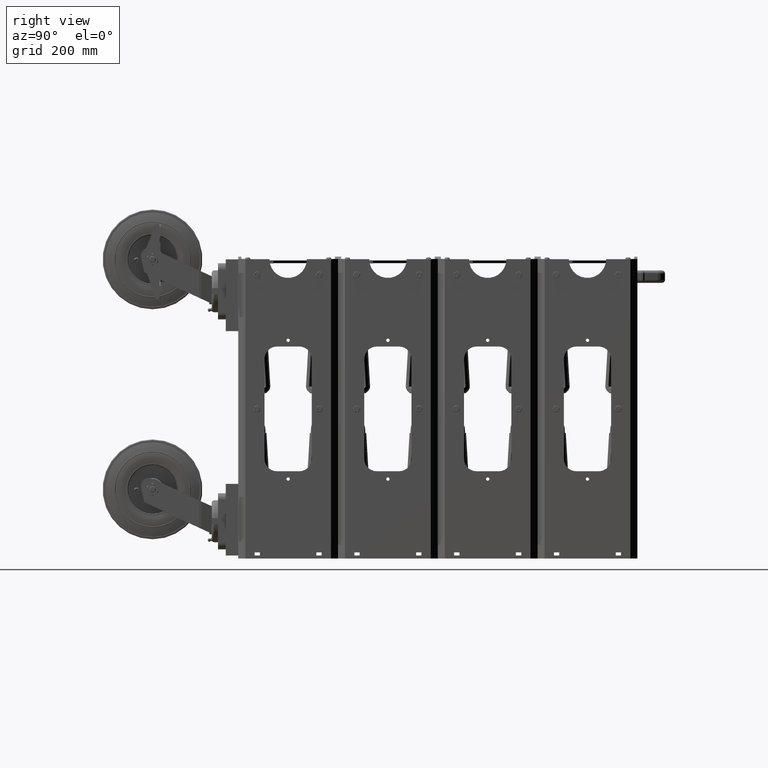
[diagram: clean part render]
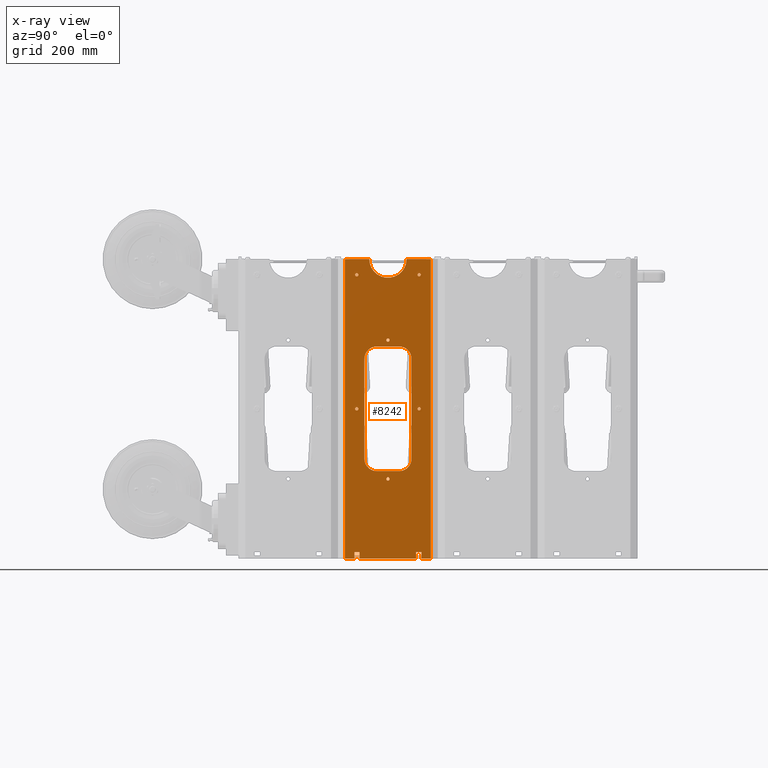
[diagram: x-ray — body ghosted, one internal face saturated and labeled with its STEP entity id]
A machine part, right view, then the same camera in x-ray: the body is ghosted and one INTERNAL B-rep face — a face not visible from any outside direction — is saturated and labeled: STEP entity #8242.
In plain terms, the highlighted planar face has unit normal (-1, 0, 0).
Its self-contained STEP definition (entity closure, byte-faithful):
#16 = CARTESIAN_POINT ( 'NONE',  ( -2.687500000000000400, 4.000000000000000000, 11.60500000000000000 ) ) ;
#17 = CARTESIAN_POINT ( 'NONE',  ( -2.263500000000000500, 4.000000000000000000, 11.60500000000000000 ) ) ;
#20 = CARTESIAN_POINT ( 'NONE',  ( 2.263500000000000500, 4.000000000000000000, 11.60500000000000000 ) ) ;
#21 = CARTESIAN_POINT ( 'NONE',  ( 2.687500000000000400, 4.000000000000000000, 11.60500000000000000 ) ) ;
#26 = CARTESIAN_POINT ( 'NONE',  ( -1.895000000000002700, 4.000000000000000000, -3.894999999999997800 ) ) ;
#27 = CARTESIAN_POINT ( 'NONE',  ( -1.895000000000000900, 4.000000000000000900, 4.105000000000000400 ) ) ;
#29 = CARTESIAN_POINT ( 'NONE',  ( -0.8950000000000020200, 4.000000000000000900, -4.894999999999997800 ) ) ;
#31 = CARTESIAN_POINT ( 'NONE',  ( 0.8949999999999930200, 4.000000000000000900, -4.894999999999997800 ) ) ;
#33 = CARTESIAN_POINT ( 'NONE',  ( 1.895000000000000500, 4.000000000000000900, -3.894999999999990700 ) ) ;
#35 = CARTESIAN_POINT ( 'NONE',  ( 1.895000000000000200, 4.000000000000000900, 4.105000000000000400 ) ) ;
#37 = CARTESIAN_POINT ( 'NONE',  ( 0.8950000000000000200, 4.000000000000000900, 5.105000000000001300 ) ) ;
#39 = CARTESIAN_POINT ( 'NONE',  ( -0.8950000000000010200, 4.000000000000000900, 5.105000000000000400 ) ) ;
#70 = CARTESIAN_POINT ( 'NONE',  ( -2.687500000000000400, 4.000000000000000000, 12.10500000000000000 ) ) ;
#73 = CARTESIAN_POINT ( 'NONE',  ( -2.263500000000000500, 4.000000000000000000, 12.10500000000000000 ) ) ;
#76 = CARTESIAN_POINT ( 'NONE',  ( 2.263500000000000500, 4.000000000000000000, 12.10500000000000000 ) ) ;
#79 = CARTESIAN_POINT ( 'NONE',  ( 2.687500000000000400, 4.000000000000000000, 12.10500000000000000 ) ) ;
#85 = CARTESIAN_POINT ( 'NONE',  ( 3.437500000000008000, 4.000000000000000000, 12.10500000000000000 ) ) ;
#86 = CARTESIAN_POINT ( 'NONE',  ( 3.437500000000004000, 4.000000000000000900, -11.89500000000000000 ) ) ;
#87 = CARTESIAN_POINT ( 'NONE',  ( 1.499999999999996700, 4.000000000000000900, -11.89500000000000000 ) ) ;
#88 = CARTESIAN_POINT ( 'NONE',  ( -1.500000000000004200, 4.000000000000000900, -11.89500000000000000 ) ) ;
#89 = CARTESIAN_POINT ( 'NONE',  ( -3.437499999999995600, 4.000000000000000900, -11.89500000000000000 ) ) ;
#90 = CARTESIAN_POINT ( 'NONE',  ( -3.437499999999994700, 4.000000000000000900, 12.10500000000000000 ) ) ;
#366 = AXIS2_PLACEMENT_3D ( 'NONE', #4080, #4082, #4083 ) ;
#368 = AXIS2_PLACEMENT_3D ( 'NONE', #4090, #4092, #4093 ) ;
#370 = AXIS2_PLACEMENT_3D ( 'NONE', #4100, #4102, #4103 ) ;
#372 = AXIS2_PLACEMENT_3D ( 'NONE', #4110, #4112, #4113 ) ;
#374 = AXIS2_PLACEMENT_3D ( 'NONE', #4120, #4122, #4123 ) ;
#376 = AXIS2_PLACEMENT_3D ( 'NONE', #4130, #4132, #4133 ) ;
#390 = AXIS2_PLACEMENT_3D ( 'NONE', #4228, #4232, #4233 ) ;
#391 = AXIS2_PLACEMENT_3D ( 'NONE', #4221, #4223, #4224 ) ;
#394 = AXIS2_PLACEMENT_3D ( 'NONE', #4251, #4253, #4254 ) ;
#396 = AXIS2_PLACEMENT_3D ( 'NONE', #4265, #4267, #4268 ) ;
#397 = AXIS2_PLACEMENT_3D ( 'NONE', #4278, #4287, #4288 ) ;
#398 = AXIS2_PLACEMENT_3D ( 'NONE', #4281, #4284, #4285 ) ;
#401 = AXIS2_PLACEMENT_3D ( 'NONE', #4286, #4293, #4294 ) ;
#402 = AXIS2_PLACEMENT_3D ( 'NONE', #4289, #4296, #4297 ) ;
#404 = AXIS2_PLACEMENT_3D ( 'NONE', #4295, #4302, #4303 ) ;
#406 = AXIS2_PLACEMENT_3D ( 'NONE', #4301, #4308, #4309 ) ;
#409 = AXIS2_PLACEMENT_3D ( 'NONE', #4442, #4448, #4449 ) ;
#2257 = CIRCLE ( 'NONE', #366, 0.1329999999999999200 ) ;
#2263 = CIRCLE ( 'NONE', #368, 0.1329999999999999200 ) ;
#2269 = CIRCLE ( 'NONE', #370, 0.1329999999999999200 ) ;
#2275 = CIRCLE ( 'NONE', #372, 0.1329999999999999200 ) ;
#2281 = CIRCLE ( 'NONE', #374, 0.1329999999999997300 ) ;
#2287 = CIRCLE ( 'NONE', #376, 0.1329999999999997000 ) ;
#2328 = VECTOR ( 'NONE', #4210, 39.37007874015748100 ) ;
#2330 = LINE ( 'NONE', #4209, #2328 ) ;
#2339 = LINE ( 'NONE', #4216, #2344 ) ;
#2344 = VECTOR ( 'NONE', #4220, 39.37007874015748100 ) ;
#2349 = LINE ( 'NONE', #4219, #2351 ) ;
#2350 = CIRCLE ( 'NONE', #391, 1.000000000000000200 ) ;
#2351 = VECTOR ( 'NONE', #4229, 39.37007874015748100 ) ;
#2356 = CIRCLE ( 'NONE', #390, 1.000000000000000200 ) ;
#2358 = VECTOR ( 'NONE', #4248, 39.37007874015748100 ) ;
#2360 = LINE ( 'NONE', #4247, #2358 ) ;
#2361 = LINE ( 'NONE', #4239, #2362 ) ;
#2362 = VECTOR ( 'NONE', #4240, 39.37007874015748100 ) ;
#2372 = VECTOR ( 'NONE', #4262, 39.37007874015748100 ) ;
#2373 = LINE ( 'NONE', #4261, #2372 ) ;
#2374 = CIRCLE ( 'NONE', #394, 1.000000000000000900 ) ;
#2382 = CIRCLE ( 'NONE', #396, 1.000000000000000200 ) ;
#2389 = CIRCLE ( 'NONE', #398, 0.1329999999999997000 ) ;
#2390 = CIRCLE ( 'NONE', #397, 0.1329999999999997300 ) ;
#2392 = CIRCLE ( 'NONE', #401, 0.1329999999999999200 ) ;
#2393 = CIRCLE ( 'NONE', #402, 0.1329999999999999200 ) ;
#2396 = CIRCLE ( 'NONE', #404, 0.1329999999999999200 ) ;
#2400 = CIRCLE ( 'NONE', #406, 0.1329999999999999200 ) ;
#4080 = CARTESIAN_POINT ( 'NONE',  ( 0.0000000000000000000, 4.000000000000000900, 5.730000000000000400 ) ) ;
#4082 = DIRECTION ( 'NONE',  ( 0.0000000000000000000, -1.000000000000000000, 0.0000000000000000000 ) ) ;
#4083 = DIRECTION ( 'NONE',  ( 0.0000000000000000000, 0.0000000000000000000, -1.000000000000000000 ) ) ;
#4090 = CARTESIAN_POINT ( 'NONE',  ( 0.0000000000000000000, 4.000000000000000900, -5.394999999999999600 ) ) ;
#4092 = DIRECTION ( 'NONE',  ( 0.0000000000000000000, -1.000000000000000000, 0.0000000000000000000 ) ) ;
#4093 = DIRECTION ( 'NONE',  ( 0.0000000000000000000, 0.0000000000000000000, -1.000000000000000000 ) ) ;
#4100 = CARTESIAN_POINT ( 'NONE',  ( 2.500000000000001300, 4.000000000000000900, -10.64500000000000000 ) ) ;
#4102 = DIRECTION ( 'NONE',  ( 0.0000000000000000000, -1.000000000000000000, 0.0000000000000000000 ) ) ;
#4103 = DIRECTION ( 'NONE',  ( 0.0000000000000000000, 0.0000000000000000000, -1.000000000000000000 ) ) ;
#4110 = CARTESIAN_POINT ( 'NONE',  ( -2.500000000000000000, 4.000000000000000900, -10.64500000000000000 ) ) ;
#4112 = DIRECTION ( 'NONE',  ( 0.0000000000000000000, -1.000000000000000000, 0.0000000000000000000 ) ) ;
#4113 = DIRECTION ( 'NONE',  ( 0.0000000000000000000, 0.0000000000000000000, -1.000000000000000000 ) ) ;
#4120 = CARTESIAN_POINT ( 'NONE',  ( 2.500000000000000000, 4.000000000000000900, 0.1050000000000012000 ) ) ;
#4122 = DIRECTION ( 'NONE',  ( 0.0000000000000000000, -1.000000000000000000, 0.0000000000000000000 ) ) ;
#4123 = DIRECTION ( 'NONE',  ( 0.0000000000000000000, 0.0000000000000000000, -1.000000000000000000 ) ) ;
#4130 = CARTESIAN_POINT ( 'NONE',  ( -2.500000000000000000, 4.000000000000000900, 0.1050000000000011900 ) ) ;
#4132 = DIRECTION ( 'NONE',  ( 0.0000000000000000000, -1.000000000000000000, 0.0000000000000000000 ) ) ;
#4133 = DIRECTION ( 'NONE',  ( 0.0000000000000000000, 0.0000000000000000000, -1.000000000000000000 ) ) ;
#4209 = CARTESIAN_POINT ( 'NONE',  ( -1.895000000000000900, 4.000000000000000900, 4.105000000000000400 ) ) ;
#4210 = DIRECTION ( 'NONE',  ( -2.048885995248197900E-016, 0.0000000000000000000, -1.000000000000000000 ) ) ;
#4216 = CARTESIAN_POINT ( 'NONE',  ( -2.687500000000000400, 4.000000000000000000, 11.60500000000000000 ) ) ;
#4219 = CARTESIAN_POINT ( 'NONE',  ( 2.263500000000000500, 4.000000000000000000, 11.60500000000000000 ) ) ;
#4220 = DIRECTION ( 'NONE',  ( 1.000000000000000000, 0.0000000000000000000, 0.0000000000000000000 ) ) ;
#4221 = CARTESIAN_POINT ( 'NONE',  ( -0.8950000000000022400, 4.000000000000000900, -3.894999999999997800 ) ) ;
#4223 = DIRECTION ( 'NONE',  ( -0.0000000000000000000, -1.000000000000000000, -0.0000000000000000000 ) ) ;
#4224 = DIRECTION ( 'NONE',  ( 0.0000000000000000000, 0.0000000000000000000, 1.000000000000000000 ) ) ;
#4228 = CARTESIAN_POINT ( 'NONE',  ( 0.8950000000000001300, 4.000000000000000900, -3.894999999999997800 ) ) ;
#4229 = DIRECTION ( 'NONE',  ( 1.000000000000000000, 0.0000000000000000000, 0.0000000000000000000 ) ) ;
#4232 = DIRECTION ( 'NONE',  ( 0.0000000000000000000, -1.000000000000000000, 0.0000000000000000000 ) ) ;
#4233 = DIRECTION ( 'NONE',  ( 0.0000000000000000000, 0.0000000000000000000, -1.000000000000000000 ) ) ;
#4239 = CARTESIAN_POINT ( 'NONE',  ( -0.8950000000000022400, 4.000000000000000900, -4.894999999999997800 ) ) ;
#4240 = DIRECTION ( 'NONE',  ( 1.000000000000000000, 0.0000000000000000000, 0.0000000000000000000 ) ) ;
#4247 = CARTESIAN_POINT ( 'NONE',  ( 1.895000000000000200, 4.000000000000000900, 4.105000000000000400 ) ) ;
#4248 = DIRECTION ( 'NONE',  ( -0.0000000000000000000, -0.0000000000000000000, 1.000000000000000000 ) ) ;
#4251 = CARTESIAN_POINT ( 'NONE',  ( 0.8949999999999999100, 4.000000000000000900, 4.105000000000000400 ) ) ;
#4253 = DIRECTION ( 'NONE',  ( 0.0000000000000000000, -1.000000000000000000, 0.0000000000000000000 ) ) ;
#4254 = DIRECTION ( 'NONE',  ( 0.0000000000000000000, 0.0000000000000000000, -1.000000000000000000 ) ) ;
#4261 = CARTESIAN_POINT ( 'NONE',  ( -0.8950000000000010200, 4.000000000000000900, 5.105000000000000400 ) ) ;
#4262 = DIRECTION ( 'NONE',  ( -1.000000000000000000, -0.0000000000000000000, -6.104688253998350900E-016 ) ) ;
#4265 = CARTESIAN_POINT ( 'NONE',  ( -0.8950000000000006800, 4.000000000000000900, 4.105000000000000400 ) ) ;
#4267 = DIRECTION ( 'NONE',  ( -0.0000000000000000000, -1.000000000000000000, -0.0000000000000000000 ) ) ;
#4268 = DIRECTION ( 'NONE',  ( 0.0000000000000000000, 0.0000000000000000000, 1.000000000000000000 ) ) ;
#4278 = CARTESIAN_POINT ( 'NONE',  ( 2.500000000000000000, 4.000000000000000900, 0.1050000000000012000 ) ) ;
#4281 = CARTESIAN_POINT ( 'NONE',  ( -2.500000000000000000, 4.000000000000000900, 0.1050000000000011900 ) ) ;
#4284 = DIRECTION ( 'NONE',  ( 0.0000000000000000000, -1.000000000000000000, 0.0000000000000000000 ) ) ;
#4285 = DIRECTION ( 'NONE',  ( 0.0000000000000000000, 0.0000000000000000000, -1.000000000000000000 ) ) ;
#4286 = CARTESIAN_POINT ( 'NONE',  ( -2.500000000000000000, 4.000000000000000900, -10.64500000000000000 ) ) ;
#4287 = DIRECTION ( 'NONE',  ( 0.0000000000000000000, -1.000000000000000000, 0.0000000000000000000 ) ) ;
#4288 = DIRECTION ( 'NONE',  ( 0.0000000000000000000, 0.0000000000000000000, -1.000000000000000000 ) ) ;
#4289 = CARTESIAN_POINT ( 'NONE',  ( 2.500000000000001300, 4.000000000000000900, -10.64500000000000000 ) ) ;
#4293 = DIRECTION ( 'NONE',  ( 0.0000000000000000000, -1.000000000000000000, 0.0000000000000000000 ) ) ;
#4294 = DIRECTION ( 'NONE',  ( 0.0000000000000000000, 0.0000000000000000000, -1.000000000000000000 ) ) ;
#4295 = CARTESIAN_POINT ( 'NONE',  ( 0.0000000000000000000, 4.000000000000000900, -5.394999999999999600 ) ) ;
#4296 = DIRECTION ( 'NONE',  ( 0.0000000000000000000, -1.000000000000000000, 0.0000000000000000000 ) ) ;
#4297 = DIRECTION ( 'NONE',  ( 0.0000000000000000000, 0.0000000000000000000, -1.000000000000000000 ) ) ;
#4301 = CARTESIAN_POINT ( 'NONE',  ( 0.0000000000000000000, 4.000000000000000900, 5.730000000000000400 ) ) ;
#4302 = DIRECTION ( 'NONE',  ( 0.0000000000000000000, -1.000000000000000000, 0.0000000000000000000 ) ) ;
#4303 = DIRECTION ( 'NONE',  ( 0.0000000000000000000, 0.0000000000000000000, -1.000000000000000000 ) ) ;
#4308 = DIRECTION ( 'NONE',  ( 0.0000000000000000000, -1.000000000000000000, 0.0000000000000000000 ) ) ;
#4309 = DIRECTION ( 'NONE',  ( 0.0000000000000000000, 0.0000000000000000000, -1.000000000000000000 ) ) ;
#4411 = CARTESIAN_POINT ( 'NONE',  ( -2.687500000000000400, 4.000000000000000000, 12.10500000000000000 ) ) ;
#4414 = DIRECTION ( 'NONE',  ( 0.0000000000000000000, 0.0000000000000000000, -1.000000000000000000 ) ) ;
#4421 = CARTESIAN_POINT ( 'NONE',  ( -2.263500000000000500, 4.000000000000000000, 12.10500000000000000 ) ) ;
#4422 = DIRECTION ( 'NONE',  ( 5.463695987328531400E-016, 0.0000000000000000000, 1.000000000000000000 ) ) ;
#4429 = CARTESIAN_POINT ( 'NONE',  ( 2.263500000000000500, 4.000000000000000000, 12.10500000000000000 ) ) ;
#4430 = DIRECTION ( 'NONE',  ( 5.463695987328531400E-016, 0.0000000000000000000, -1.000000000000000000 ) ) ;
#4437 = CARTESIAN_POINT ( 'NONE',  ( 2.687500000000000400, 4.000000000000000000, 12.10500000000000000 ) ) ;
#4438 = DIRECTION ( 'NONE',  ( 0.0000000000000000000, 0.0000000000000000000, 1.000000000000000000 ) ) ;
#4439 = CARTESIAN_POINT ( 'NONE',  ( -3.437499999999995600, 4.000000000000000000, 12.10500000000000000 ) ) ;
#4442 = CARTESIAN_POINT ( 'NONE',  ( -3.824587191129968100E-015, 4.000000000000000900, -11.89500000000000000 ) ) ;
#4448 = DIRECTION ( 'NONE',  ( 0.0000000000000000000, -1.000000000000000000, 0.0000000000000000000 ) ) ;
#4449 = DIRECTION ( 'NONE',  ( 0.0000000000000000000, 0.0000000000000000000, -1.000000000000000000 ) ) ;
#4450 = CARTESIAN_POINT ( 'NONE',  ( -4.000000000000000000, 4.000000000000000900, -11.89500000000000000 ) ) ;
#4451 = DIRECTION ( 'NONE',  ( 1.000000000000000000, -0.0000000000000000000, -0.0000000000000000000 ) ) ;
#4452 = CARTESIAN_POINT ( 'NONE',  ( 3.437500000000005800, 4.000000000000000000, 12.10500000000000000 ) ) ;
#4453 = DIRECTION ( 'NONE',  ( 0.0000000000000000000, 0.0000000000000000000, -1.000000000000000000 ) ) ;
#4454 = CARTESIAN_POINT ( 'NONE',  ( -4.000000000000000900, 4.000000000000000000, 12.10500000000000000 ) ) ;
#4455 = DIRECTION ( 'NONE',  ( -1.000000000000000000, -0.0000000000000000000, -0.0000000000000000000 ) ) ;
#4457 = CARTESIAN_POINT ( 'NONE',  ( -4.000000000000000000, 4.000000000000000900, -11.89500000000000000 ) ) ;
#4458 = DIRECTION ( 'NONE',  ( 1.000000000000000000, -0.0000000000000000000, -0.0000000000000000000 ) ) ;
#4459 = DIRECTION ( 'NONE',  ( 0.0000000000000000000, 0.0000000000000000000, 1.000000000000000000 ) ) ;
#4460 = CARTESIAN_POINT ( 'NONE',  ( -4.000000000000000900, 4.000000000000000000, 12.10500000000000000 ) ) ;
#4461 = DIRECTION ( 'NONE',  ( -1.000000000000000000, -0.0000000000000000000, -0.0000000000000000000 ) ) ;
#4464 = CARTESIAN_POINT ( 'NONE',  ( -4.000000000000000900, 4.000000000000000000, 12.10500000000000000 ) ) ;
#4465 = DIRECTION ( 'NONE',  ( -1.000000000000000000, -0.0000000000000000000, -0.0000000000000000000 ) ) ;
#4921 = LINE ( 'NONE', #4411, #4938 ) ;
#4938 = VECTOR ( 'NONE', #4414, 39.37007874015748100 ) ;
#4939 = VECTOR ( 'NONE', #4451, 39.37007874015748100 ) ;
#4946 = LINE ( 'NONE', #4421, #4947 ) ;
#4947 = VECTOR ( 'NONE', #4422, 39.37007874015748100 ) ;
#4953 = LINE ( 'NONE', #4450, #4939 ) ;
#4954 = LINE ( 'NONE', #4429, #4955 ) ;
#4955 = VECTOR ( 'NONE', #4430, 39.37007874015748100 ) ;
#4962 = LINE ( 'NONE', #4437, #4963 ) ;
#4963 = VECTOR ( 'NONE', #4438, 39.37007874015748100 ) ;
#4971 = LINE ( 'NONE', #4439, #4979 ) ;
#4972 = CIRCLE ( 'NONE', #409, 1.500000000000000900 ) ;
#4973 = LINE ( 'NONE', #4452, #4974 ) ;
#4974 = VECTOR ( 'NONE', #4453, 39.37007874015748100 ) ;
#4975 = LINE ( 'NONE', #4454, #4976 ) ;
#4976 = VECTOR ( 'NONE', #4455, 39.37007874015748100 ) ;
#4977 = LINE ( 'NONE', #4457, #4978 ) ;
#4978 = VECTOR ( 'NONE', #4458, 39.37007874015748100 ) ;
#4979 = VECTOR ( 'NONE', #4459, 39.37007874015748100 ) ;
#4981 = LINE ( 'NONE', #4460, #4982 ) ;
#4982 = VECTOR ( 'NONE', #4461, 39.37007874015748100 ) ;
#4985 = LINE ( 'NONE', #4464, #4986 ) ;
#4986 = VECTOR ( 'NONE', #4465, 39.37007874015748100 ) ;
#8242 = ADVANCED_FACE ( 'NONE', ( #25886, #25888, #25890, #25892, #25884, #25887, #25889, #25891 ), #27751, .F. ) ;
#16269 = VERTEX_POINT ( 'NONE', #44473 ) ;
#16270 = VERTEX_POINT ( 'NONE', #44474 ) ;
#16273 = VERTEX_POINT ( 'NONE', #44477 ) ;
#16274 = VERTEX_POINT ( 'NONE', #44478 ) ;
#16277 = VERTEX_POINT ( 'NONE', #44481 ) ;
#16278 = VERTEX_POINT ( 'NONE', #44482 ) ;
#16281 = VERTEX_POINT ( 'NONE', #44485 ) ;
#16282 = VERTEX_POINT ( 'NONE', #44486 ) ;
#16285 = VERTEX_POINT ( 'NONE', #44489 ) ;
#16286 = VERTEX_POINT ( 'NONE', #44490 ) ;
#16289 = VERTEX_POINT ( 'NONE', #44493 ) ;
#16290 = VERTEX_POINT ( 'NONE', #44494 ) ;
#16317 = VERTEX_POINT ( 'NONE', #16 ) ;
#16318 = VERTEX_POINT ( 'NONE', #17 ) ;
#16321 = VERTEX_POINT ( 'NONE', #20 ) ;
#16322 = VERTEX_POINT ( 'NONE', #21 ) ;
#16327 = VERTEX_POINT ( 'NONE', #26 ) ;
#16328 = VERTEX_POINT ( 'NONE', #27 ) ;
#16330 = VERTEX_POINT ( 'NONE', #29 ) ;
#16332 = VERTEX_POINT ( 'NONE', #31 ) ;
#16334 = VERTEX_POINT ( 'NONE', #33 ) ;
#16336 = VERTEX_POINT ( 'NONE', #35 ) ;
#16338 = VERTEX_POINT ( 'NONE', #37 ) ;
#16340 = VERTEX_POINT ( 'NONE', #39 ) ;
#16371 = VERTEX_POINT ( 'NONE', #70 ) ;
#16374 = VERTEX_POINT ( 'NONE', #73 ) ;
#16377 = VERTEX_POINT ( 'NONE', #76 ) ;
#16380 = VERTEX_POINT ( 'NONE', #79 ) ;
#16386 = VERTEX_POINT ( 'NONE', #85 ) ;
#16387 = VERTEX_POINT ( 'NONE', #86 ) ;
#16388 = VERTEX_POINT ( 'NONE', #87 ) ;
#16389 = VERTEX_POINT ( 'NONE', #88 ) ;
#16390 = VERTEX_POINT ( 'NONE', #89 ) ;
#16391 = VERTEX_POINT ( 'NONE', #90 ) ;
#17229 = EDGE_CURVE ( 'NONE', #16269, #16270, #2257, .T. ) ;
#17233 = EDGE_CURVE ( 'NONE', #16273, #16274, #2263, .T. ) ;
#17237 = EDGE_CURVE ( 'NONE', #16277, #16278, #2269, .T. ) ;
#17241 = EDGE_CURVE ( 'NONE', #16281, #16282, #2275, .T. ) ;
#17245 = EDGE_CURVE ( 'NONE', #16285, #16286, #2281, .T. ) ;
#17249 = EDGE_CURVE ( 'NONE', #16289, #16290, #2287, .T. ) ;
#17281 = EDGE_CURVE ( 'NONE', #16328, #16327, #2330, .T. ) ;
#17285 = EDGE_CURVE ( 'NONE', #16317, #16318, #2339, .T. ) ;
#17287 = EDGE_CURVE ( 'NONE', #16327, #16330, #2350, .T. ) ;
#17289 = EDGE_CURVE ( 'NONE', #16321, #16322, #2349, .T. ) ;
#17291 = EDGE_CURVE ( 'NONE', #16332, #16334, #2356, .T. ) ;
#17295 = EDGE_CURVE ( 'NONE', #16330, #16332, #2361, .T. ) ;
#17298 = EDGE_CURVE ( 'NONE', #16334, #16336, #2360, .T. ) ;
#17301 = EDGE_CURVE ( 'NONE', #16336, #16338, #2374, .T. ) ;
#17304 = EDGE_CURVE ( 'NONE', #16338, #16340, #2373, .T. ) ;
#17307 = EDGE_CURVE ( 'NONE', #16340, #16328, #2382, .T. ) ;
#17313 = EDGE_CURVE ( 'NONE', #16290, #16289, #2389, .T. ) ;
#17314 = EDGE_CURVE ( 'NONE', #16286, #16285, #2390, .T. ) ;
#17316 = EDGE_CURVE ( 'NONE', #16282, #16281, #2392, .T. ) ;
#17317 = EDGE_CURVE ( 'NONE', #16278, #16277, #2393, .T. ) ;
#17319 = EDGE_CURVE ( 'NONE', #16274, #16273, #2396, .T. ) ;
#17321 = EDGE_CURVE ( 'NONE', #16270, #16269, #2400, .T. ) ;
#17680 = ORIENTED_EDGE ( 'NONE', *, *, #17321, .T. ) ;
#17681 = ORIENTED_EDGE ( 'NONE', *, *, #17229, .T. ) ;
#17682 = ORIENTED_EDGE ( 'NONE', *, *, #17319, .T. ) ;
#17683 = ORIENTED_EDGE ( 'NONE', *, *, #17233, .T. ) ;
#17684 = ORIENTED_EDGE ( 'NONE', *, *, #17317, .T. ) ;
#17685 = ORIENTED_EDGE ( 'NONE', *, *, #17237, .T. ) ;
#17686 = ORIENTED_EDGE ( 'NONE', *, *, #17316, .T. ) ;
#17687 = ORIENTED_EDGE ( 'NONE', *, *, #17241, .T. ) ;
#17688 = ORIENTED_EDGE ( 'NONE', *, *, #17314, .T. ) ;
#17689 = ORIENTED_EDGE ( 'NONE', *, *, #17245, .T. ) ;
#17690 = ORIENTED_EDGE ( 'NONE', *, *, #17313, .T. ) ;
#17691 = ORIENTED_EDGE ( 'NONE', *, *, #17249, .T. ) ;
#17692 = ORIENTED_EDGE ( 'NONE', *, *, #17304, .T. ) ;
#17693 = ORIENTED_EDGE ( 'NONE', *, *, #17307, .T. ) ;
#17694 = ORIENTED_EDGE ( 'NONE', *, *, #17281, .T. ) ;
#17695 = ORIENTED_EDGE ( 'NONE', *, *, #17287, .T. ) ;
#17696 = ORIENTED_EDGE ( 'NONE', *, *, #17295, .T. ) ;
#17697 = ORIENTED_EDGE ( 'NONE', *, *, #17291, .T. ) ;
#17698 = ORIENTED_EDGE ( 'NONE', *, *, #17298, .T. ) ;
#17699 = ORIENTED_EDGE ( 'NONE', *, *, #17301, .T. ) ;
#17700 = ORIENTED_EDGE ( 'NONE', *, *, #18742, .T. ) ;
#17701 = ORIENTED_EDGE ( 'NONE', *, *, #17289, .T. ) ;
#17702 = ORIENTED_EDGE ( 'NONE', *, *, #18746, .T. ) ;
#17703 = ORIENTED_EDGE ( 'NONE', *, *, #18754, .F. ) ;
#17704 = ORIENTED_EDGE ( 'NONE', *, *, #18753, .T. ) ;
#17705 = ORIENTED_EDGE ( 'NONE', *, *, #18752, .F. ) ;
#17706 = ORIENTED_EDGE ( 'NONE', *, *, #18751, .T. ) ;
#17707 = ORIENTED_EDGE ( 'NONE', *, *, #18755, .F. ) ;
#17708 = ORIENTED_EDGE ( 'NONE', *, *, #18756, .T. ) ;
#17709 = ORIENTED_EDGE ( 'NONE', *, *, #18757, .F. ) ;
#17710 = ORIENTED_EDGE ( 'NONE', *, *, #18734, .T. ) ;
#17711 = ORIENTED_EDGE ( 'NONE', *, *, #17285, .T. ) ;
#17712 = ORIENTED_EDGE ( 'NONE', *, *, #18738, .T. ) ;
#17713 = ORIENTED_EDGE ( 'NONE', *, *, #18759, .F. ) ;
#18119 = EDGE_LOOP ( 'NONE', ( #17680, #17681 ) ) ;
#18125 = EDGE_LOOP ( 'NONE', ( #17682, #17683 ) ) ;
#18126 = EDGE_LOOP ( 'NONE', ( #17684, #17685 ) ) ;
#18127 = EDGE_LOOP ( 'NONE', ( #17686, #17687 ) ) ;
#18128 = EDGE_LOOP ( 'NONE', ( #17688, #17689 ) ) ;
#18129 = EDGE_LOOP ( 'NONE', ( #17690, #17691 ) ) ;
#18130 = EDGE_LOOP ( 'NONE', ( #17692, #17693, #17694, #17695, #17696, #17697, #17698, #17699 ) ) ;
#18131 = EDGE_LOOP ( 'NONE', ( #17700, #17701, #17702, #17703, #17704, #17705, #17706, #17707, #17708, #17709, #17710, #17711, #17712, #17713 ) ) ;
#18734 = EDGE_CURVE ( 'NONE', #16371, #16317, #4921, .T. ) ;
#18738 = EDGE_CURVE ( 'NONE', #16318, #16374, #4946, .T. ) ;
#18742 = EDGE_CURVE ( 'NONE', #16377, #16321, #4954, .T. ) ;
#18746 = EDGE_CURVE ( 'NONE', #16322, #16380, #4962, .T. ) ;
#18751 = EDGE_CURVE ( 'NONE', #16388, #16389, #4972, .T. ) ;
#18752 = EDGE_CURVE ( 'NONE', #16388, #16387, #4953, .T. ) ;
#18753 = EDGE_CURVE ( 'NONE', #16386, #16387, #4973, .T. ) ;
#18754 = EDGE_CURVE ( 'NONE', #16386, #16380, #4975, .T. ) ;
#18755 = EDGE_CURVE ( 'NONE', #16390, #16389, #4977, .T. ) ;
#18756 = EDGE_CURVE ( 'NONE', #16390, #16391, #4971, .T. ) ;
#18757 = EDGE_CURVE ( 'NONE', #16371, #16391, #4981, .T. ) ;
#18759 = EDGE_CURVE ( 'NONE', #16377, #16374, #4985, .T. ) ;
#25884 = FACE_BOUND ( 'NONE', #18128, .T. ) ;
#25886 = FACE_BOUND ( 'NONE', #18119, .T. ) ;
#25887 = FACE_BOUND ( 'NONE', #18129, .T. ) ;
#25888 = FACE_BOUND ( 'NONE', #18125, .T. ) ;
#25889 = FACE_BOUND ( 'NONE', #18130, .T. ) ;
#25890 = FACE_BOUND ( 'NONE', #18126, .T. ) ;
#25891 = FACE_OUTER_BOUND ( 'NONE', #18131, .T. ) ;
#25892 = FACE_BOUND ( 'NONE', #18127, .T. ) ;
#26906 = AXIS2_PLACEMENT_3D ( 'NONE', #27746, #27752, #27753 ) ;
#27746 = CARTESIAN_POINT ( 'NONE',  ( -4.000000000000000900, 4.000000000000000000, 12.10500000000000000 ) ) ;
#27751 = PLANE ( 'NONE',  #26906 ) ;
#27752 = DIRECTION ( 'NONE',  ( 0.0000000000000000000, -1.000000000000000000, 0.0000000000000000000 ) ) ;
#27753 = DIRECTION ( 'NONE',  ( 0.0000000000000000000, -0.0000000000000000000, -1.000000000000000000 ) ) ;
#44473 = CARTESIAN_POINT ( 'NONE',  ( 1.628780242865978000E-017, 4.000000000000000900, 5.863000000000000400 ) ) ;
#44474 = CARTESIAN_POINT ( 'NONE',  ( 0.0000000000000000000, 4.000000000000000900, 5.597000000000000400 ) ) ;
#44477 = CARTESIAN_POINT ( 'NONE',  ( 1.628780242865978000E-017, 4.000000000000000900, -5.261999999999999600 ) ) ;
#44478 = CARTESIAN_POINT ( 'NONE',  ( 0.0000000000000000000, 4.000000000000000900, -5.527999999999999600 ) ) ;
#44481 = CARTESIAN_POINT ( 'NONE',  ( 2.500000000000001300, 4.000000000000000900, -10.51200000000000000 ) ) ;
#44482 = CARTESIAN_POINT ( 'NONE',  ( 2.500000000000001300, 4.000000000000000900, -10.77800000000000000 ) ) ;
#44485 = CARTESIAN_POINT ( 'NONE',  ( -2.500000000000000000, 4.000000000000000900, -10.51200000000000000 ) ) ;
#44486 = CARTESIAN_POINT ( 'NONE',  ( -2.500000000000000000, 4.000000000000000900, -10.77800000000000000 ) ) ;
#44489 = CARTESIAN_POINT ( 'NONE',  ( 2.500000000000000000, 4.000000000000000900, 0.2380000000000009600 ) ) ;
#44490 = CARTESIAN_POINT ( 'NONE',  ( 2.500000000000000000, 4.000000000000000900, -0.02799999999999853000 ) ) ;
#44493 = CARTESIAN_POINT ( 'NONE',  ( -2.500000000000000000, 4.000000000000000900, 0.2380000000000009100 ) ) ;
#44494 = CARTESIAN_POINT ( 'NONE',  ( -2.500000000000000000, 4.000000000000000900, -0.02799999999999853000 ) ) ;